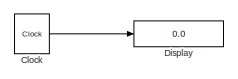
[diagram: root canvas - part 1/5, top left region]
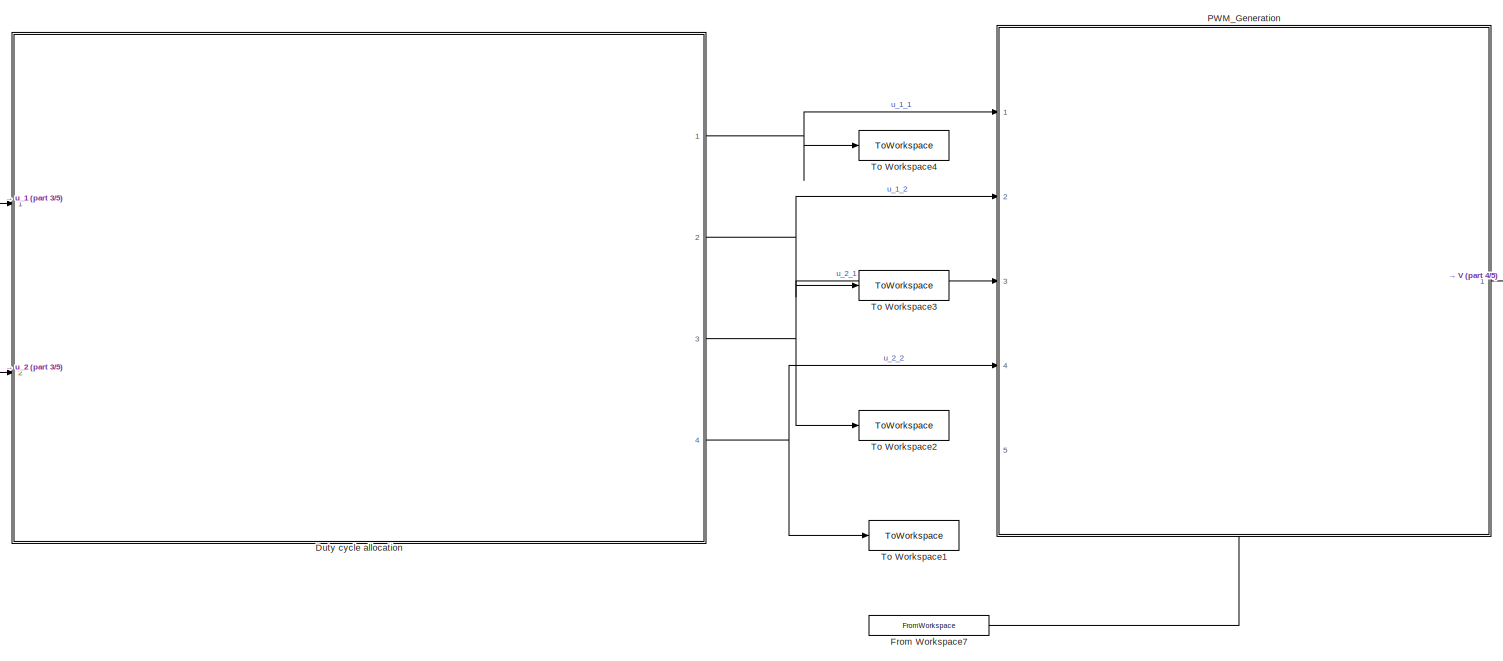
[diagram: root canvas - part 2/5, middle left region]
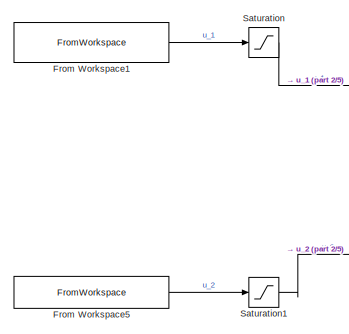
[diagram: root canvas - part 3/5, middle left region]
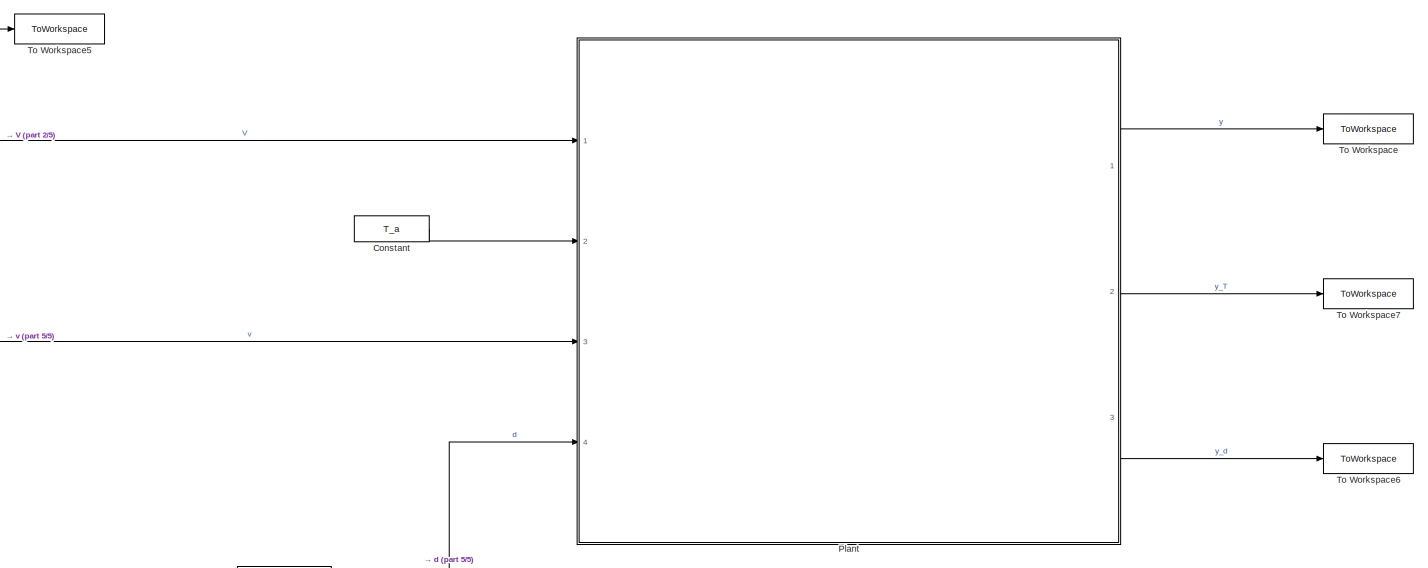
[diagram: root canvas - part 4/5, middle right region]
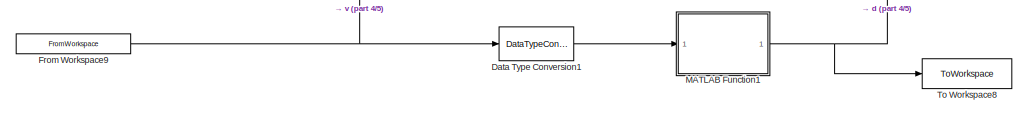
[diagram: root canvas - part 5/5, bottom center region]
MODEL slx_4b2dfacb4df1
KIND model
CONFIG AbsTol = auto
CONFIG EnableMultiTasking = off
CONFIG FixedStep = 0.01
CONFIG MaxStep = auto
CONFIG MinStep = auto
CONFIG RelTol = 1e-3
CONFIG SampleTimeConstraint = Unconstrained
CONFIG SolverName = ode45
CONFIG StartTime = 0
CONFIG StopTime = 200
BLOCK [Clock] Clock
BLOCK [Constant] Constant
  Value = T_a
BLOCK [DataTypeConversion] Data Type Conversion1
  OutDataTypeStr = int8
  RndMeth = Floor
  SaturateOnIntegerOverflow = off
BLOCK [Display] Display
  Decimation = 1
  Ports = [1]
BLOCK [SubSystem] Duty cycle allocation
  Ports = [2, 4]
  ReferencedSubsystem = duty_cycle_allocation_T_P_1
  RequestExecContextInheritance = off
BLOCK [FromWorkspace] From Workspace1
  SampleTime = T_c
  VariableName = u_1
BLOCK [FromWorkspace] From Workspace5
  SampleTime = T_c
  VariableName = u_2
BLOCK [FromWorkspace] From Workspace7
  SampleTime = T_sim
  VariableName = V_g
BLOCK [FromWorkspace] From Workspace9
  SampleTime = T_sim
  VariableName = v
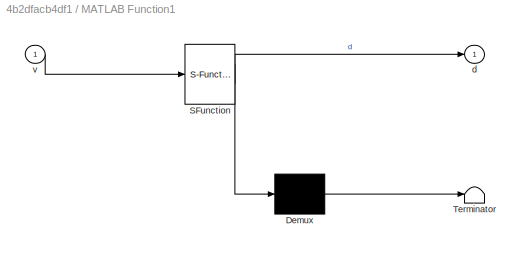
BLOCK [SubSystem] MATLAB Function1
  ErrorFcn = Stateflow.Translate.translate
  PermitHierarchicalResolution = ExplicitOnly
  Ports = [1, 1]
  RequestExecContextInheritance = off
  SFBlockType = MATLAB Function
  TreatAsAtomicUnit = on
BLOCK [Demux] MATLAB Function1/ Demux 
  Outputs = 1
  Ports = [1, 1]
BLOCK [S-Function] MATLAB Function1/ SFunction 
  EnableBusSupport = on
  FunctionName = sf_sfun
  Parameters = possible_ppms,success_rates_packs_temperatures
  PortCounts = [1 2]
  Ports = [1, 2]
  SFcnIsStateOwnerBlock = off
  SFunctionDeploymentMode = off
  Tag = Stateflow S-Function 1
BLOCK [Terminator] MATLAB Function1/ Terminator 
BLOCK [Outport] MATLAB Function1/d
BLOCK [Inport] MATLAB Function1/v
BLOCK [SubSystem] PWM_Generation
  PortSchema = {"entries":[{"content":{"sides":[{"content":{"connectorIds":["In1","In2","In3","In4"]},"type":"ConnectorPlacement.EquallySpacedRectSide","uuid":"fe032f5a-a289-47cb-afea-806cec025375"},{"content":{"connectorIds":["Out1"],"side":"RIGHT"},"type":"ConnectorPlacement.EquallySpacedRectSide","uuid":"9e11d798-72c3-41e5-8706-3d056dfacaa8"},{"content":{"connectorIds":[],"side":"TOP"},"type":"ConnectorPlacem...<+551ch>
  Ports = [5, 1]
  ReferencedSubsystem = PWM_generation
  RequestExecContextInheritance = off
BLOCK [SubSystem] Plant
  Ports = [4, 3]
  ReferencedSubsystem = plant
  RequestExecContextInheritance = off
BLOCK [Saturate] Saturation
  LowerLimit = 0
  UpperLimit = 1
BLOCK [Saturate] Saturation1
  LowerLimit = 0
  UpperLimit = 1
BLOCK [ToWorkspace] To Workspace
  FixptAsFi = on
  MaxDataPoints = inf
  Ports = [1]
  SampleTime = T_sim
  SaveFormat = Timeseries
  VariableName = y
BLOCK [ToWorkspace] To Workspace1
  FixptAsFi = on
  MaxDataPoints = inf
  Ports = [1]
  SampleTime = T_sim
  SaveFormat = Timeseries
  VariableName = u_2_2
BLOCK [ToWorkspace] To Workspace2
  FixptAsFi = on
  MaxDataPoints = inf
  Ports = [1]
  SampleTime = T_sim
  SaveFormat = Timeseries
  VariableName = u_2_1
BLOCK [ToWorkspace] To Workspace3
  FixptAsFi = on
  MaxDataPoints = inf
  Ports = [1]
  SampleTime = T_sim
  SaveFormat = Timeseries
  VariableName = u_1_2
BLOCK [ToWorkspace] To Workspace4
  FixptAsFi = on
  MaxDataPoints = inf
  Ports = [1]
  SampleTime = T_sim
  SaveFormat = Timeseries
  VariableName = u_1_1
BLOCK [ToWorkspace] To Workspace5
  FixptAsFi = on
  MaxDataPoints = inf
  Ports = [1]
  SampleTime = T_sim
  SaveFormat = Timeseries
  VariableName = V
BLOCK [ToWorkspace] To Workspace6
  FixptAsFi = on
  MaxDataPoints = inf
  Ports = [1]
  SampleTime = T_sim
  SaveFormat = Timeseries
  VariableName = y_d
BLOCK [ToWorkspace] To Workspace7
  FixptAsFi = on
  MaxDataPoints = inf
  Ports = [1]
  SampleTime = T_sim
  SaveFormat = Timeseries
  VariableName = y_T
BLOCK [ToWorkspace] To Workspace8
  FixptAsFi = on
  MaxDataPoints = inf
  Ports = [1]
  SampleTime = T_sim
  SaveFormat = Timeseries
  VariableName = d
LINE Clock:1 -> Display:1
LINE Constant:1 -> Plant:2
LINE Data Type Conversion1:1 -> MATLAB Function1:1
NET Duty cycle allocation:1 -> PWM_Generation:1, To Workspace4:1
NET Duty cycle allocation:2 -> PWM_Generation:2, To Workspace3:1
NET Duty cycle allocation:3 -> PWM_Generation:3, To Workspace2:1
NET Duty cycle allocation:4 -> PWM_Generation:4, To Workspace1:1
LINE From Workspace1:1 -> Saturation:1
LINE From Workspace5:1 -> Saturation1:1
LINE From Workspace7:1 -> PWM_Generation:5
NET From Workspace9:1 -> Data Type Conversion1:1, Plant:3
NET MATLAB Function1:1 -> Plant:4, To Workspace8:1
NET PWM_Generation:1 -> Plant:1, To Workspace5:1
LINE Plant:1 -> To Workspace:1
LINE Plant:2 -> To Workspace7:1
LINE Plant:3 -> To Workspace6:1
LINE Saturation1:1 -> Duty cycle allocation:2
LINE Saturation:1 -> Duty cycle allocation:1
note: NET lines group one-source signal fan-out (src -> all destinations, sorted); 1:1 wires keep LINE
CHART MATLAB Function1 states=1 transitions=1
  STATE_LABEL 'eML_blk_kernel()'
  STATE_LABEL 'SCRIPT:\nfunction d = d_generator(v, possible_ppms, success_rates_packs_temperatures)\nd = 0;\n\nswitch v\n    case possible_ppms(1)\n        d = pseudo_bernoulli(success_rates_packs_temperatures(1), 1);\n    case possible_ppms(2)\n        d = pseudo_bernoulli(success_rates_packs_temperatures(2), 1);\n    case possible_ppms(3)\n        d = pseudo_bernoulli(success_rates_packs_temperatures(3), 1);\n    otherw...<+30ch>'
CHART  states=0 transitions=0
